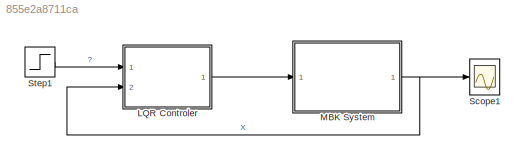
MODEL slx_855e2a8711ca
KIND model
CONFIG AbsTol = auto
CONFIG EnableMultiTasking = off
CONFIG FixedStep = 0.01
CONFIG MaxStep = auto
CONFIG MinStep = auto
CONFIG RelTol = 1e-3
CONFIG SampleTimeConstraint = Unconstrained
CONFIG Solver = ode4
CONFIG SolverName = ode4
CONFIG StartTime = 0.0
CONFIG StopTime = 10
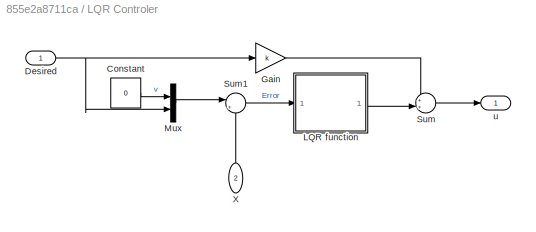
BLOCK [SubSystem] LQR Controler
  Ports = [2, 1]
  RequestExecContextInheritance = off
BLOCK [Constant] LQR Controler/Constant
  Value = 0
BLOCK [Inport] LQR Controler/Desired
  IconDisplay = Port number
BLOCK [Gain] LQR Controler/Gain
  Gain = k
  OutDataTypeStr = Inherit: Inherit via internal rule
  ParamDataTypeStr = Inherit: Inherit via internal rule
  SaturateOnIntegerOverflow = off
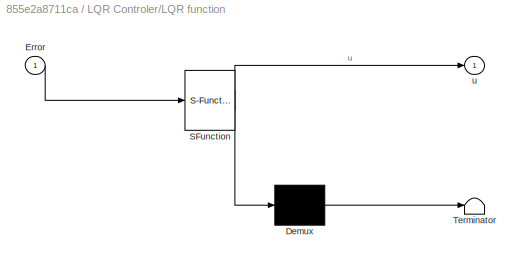
BLOCK [SubSystem] LQR Controler/LQR function
  ErrorFcn = Stateflow.Translate.translate
  PermitHierarchicalResolution = ExplicitOnly
  Ports = [1, 1]
  RequestExecContextInheritance = off
  SFBlockType = MATLAB Function
  TreatAsAtomicUnit = on
BLOCK [Demux] LQR Controler/LQR function/ Demux 
  Outputs = 1
  Ports = [1, 1]
BLOCK [S-Function] LQR Controler/LQR function/ SFunction 
  EnableBusSupport = on
  FunctionName = sf_sfun
  PortCounts = [1 2]
  Ports = [1, 2]
  SFcnIsStateOwnerBlock = off
  SFunctionDeploymentMode = off
  Tag = Stateflow S-Function MBKwithLQR 3
BLOCK [Terminator] LQR Controler/LQR function/ Terminator 
BLOCK [Inport] LQR Controler/LQR function/Error
  IconDisplay = Port number
BLOCK [Outport] LQR Controler/LQR function/u
  IconDisplay = Port number
BLOCK [Mux] LQR Controler/Mux
  DisplayOption = bar
  Inputs = 2
  Ports = [2, 1]
BLOCK [Sum] LQR Controler/Sum
  IconShape = round
  InputSameDT = off
  Inputs = ++|
  OutDataTypeStr = Inherit: Inherit via internal rule
  Ports = [2, 1]
  SaturateOnIntegerOverflow = off
BLOCK [Sum] LQR Controler/Sum1
  IconShape = round
  InputSameDT = off
  Inputs = |+-
  OutDataTypeStr = Inherit: Inherit via internal rule
  Ports = [2, 1]
  SaturateOnIntegerOverflow = off
BLOCK [Inport] LQR Controler/X
  IconDisplay = Port number
  Port = 2
BLOCK [Outport] LQR Controler/u
  IconDisplay = Port number
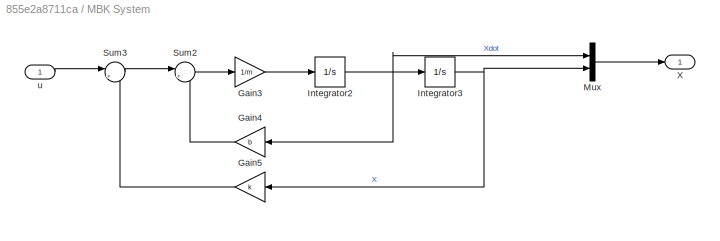
BLOCK [SubSystem] MBK System
  Ports = [1, 1]
  RequestExecContextInheritance = off
BLOCK [Gain] MBK System/Gain3
  Gain = 1/m
  OutDataTypeStr = Inherit: Inherit via internal rule
  ParamDataTypeStr = Inherit: Inherit via internal rule
  SaturateOnIntegerOverflow = off
BLOCK [Gain] MBK System/Gain4
  Gain = b
  OutDataTypeStr = Inherit: Inherit via internal rule
  ParamDataTypeStr = Inherit: Inherit via internal rule
  SaturateOnIntegerOverflow = off
BLOCK [Gain] MBK System/Gain5
  Gain = k
  OutDataTypeStr = Inherit: Inherit via internal rule
  ParamDataTypeStr = Inherit: Inherit via internal rule
  SaturateOnIntegerOverflow = off
BLOCK [Integrator] MBK System/Integrator2
  Ports = [1, 1]
BLOCK [Integrator] MBK System/Integrator3
  InitialCondition = 3
  Ports = [1, 1]
BLOCK [Mux] MBK System/Mux
  DisplayOption = bar
  Inputs = 2
  Ports = [2, 1]
BLOCK [Sum] MBK System/Sum2
  IconShape = round
  InputSameDT = off
  Inputs = |+-
  OutDataTypeStr = Inherit: Inherit via internal rule
  Ports = [2, 1]
  SaturateOnIntegerOverflow = off
BLOCK [Sum] MBK System/Sum3
  IconShape = round
  InputSameDT = off
  Inputs = |+-
  OutDataTypeStr = Inherit: Inherit via internal rule
  Ports = [2, 1]
  SaturateOnIntegerOverflow = off
BLOCK [Outport] MBK System/X
  IconDisplay = Port number
BLOCK [Inport] MBK System/u
  IconDisplay = Port number
BLOCK [Scope] Scope1
  Floating = off
  NumInputPorts = 1
  Ports = [1]
  ScopeSpecificationString = Simulink.scopes.TimeScopeBlockCfg('CurrentConfiguration', extmgr.ConfigurationSet(extmgr.Configuration('Core','General UI',true),extmgr.Configuration('Core','Source UI',true),extmgr.Configuration('Sources','WiredSimulink',true),extmgr.Configuration('Visuals','Time Domain',true,'SerializedDisplays',{struct('MinYLimReal','-7.18591','MaxYLimReal','12.5624','YLabelReal','','MinYLimMag','0.00000','MaxY...<+1434ch>
BLOCK [Step] Step1
  After = 6
  SampleTime = 0
LINE LQR Controler/Constant:1 -> LQR Controler/Mux:1
NET LQR Controler/Desired:1 -> LQR Controler/Gain:1, LQR Controler/Mux:2
LINE LQR Controler/Gain:1 -> LQR Controler/Sum:1
LINE LQR Controler/LQR function:1 -> LQR Controler/Sum:2
LINE LQR Controler/Mux:1 -> LQR Controler/Sum1:1
LINE LQR Controler/Sum1:1 -> LQR Controler/LQR function:1
LINE LQR Controler/Sum:1 -> LQR Controler/u:1
LINE LQR Controler/X:1 -> LQR Controler/Sum1:2
LINE LQR Controler:1 -> MBK System:1
LINE MBK System/Gain3:1 -> MBK System/Integrator2:1
LINE MBK System/Gain4:1 -> MBK System/Sum2:2
LINE MBK System/Gain5:1 -> MBK System/Sum3:2
NET MBK System/Integrator2:1 -> MBK System/Gain4:1, MBK System/Integrator3:1, MBK System/Mux:1
NET MBK System/Integrator3:1 -> MBK System/Gain5:1, MBK System/Mux:2
LINE MBK System/Mux:1 -> MBK System/X:1
LINE MBK System/Sum2:1 -> MBK System/Gain3:1
LINE MBK System/Sum3:1 -> MBK System/Sum2:1
LINE MBK System/u:1 -> MBK System/Sum3:1
NET MBK System:1 -> LQR Controler:2, Scope1:1
LINE Step1:1 -> LQR Controler:1
note: NET lines group one-source signal fan-out (src -> all destinations, sorted); 1:1 wires keep LINE
CHART LQR Controler/LQR function states=1 transitions=1
  STATE_LABEL 'eML_blk_kernel()'
  STATE_LABEL 'SCRIPT:\nfunction u = LQR(Error)\nm = 10;\nb = 2;\nk = 5;\nA = [0    1;\n   -k/m -b/m];\nB = [0; 1/m];\nH = [2 0;...\n     0 0];\nQ = [2000 0;...\n     0 10] ;\nR = 0.1;\nTs = 0.001 ;\nTf = 2 ; \nt = 0:Ts:Tf ;\nN = numel(t) ;\nP = zeros(2 , 2 , N);\nP(:,:,N) = H ; \npersistent Forloop;\npersistent pp;\nif isempty(Forloop)\n    Forloop = 1;\n    for k = N-1:-1:2\n        P(:,:,k-1) = P(: , : , k) + Ts*(Q -P(: , : , k)*B*R...<+187ch>'
